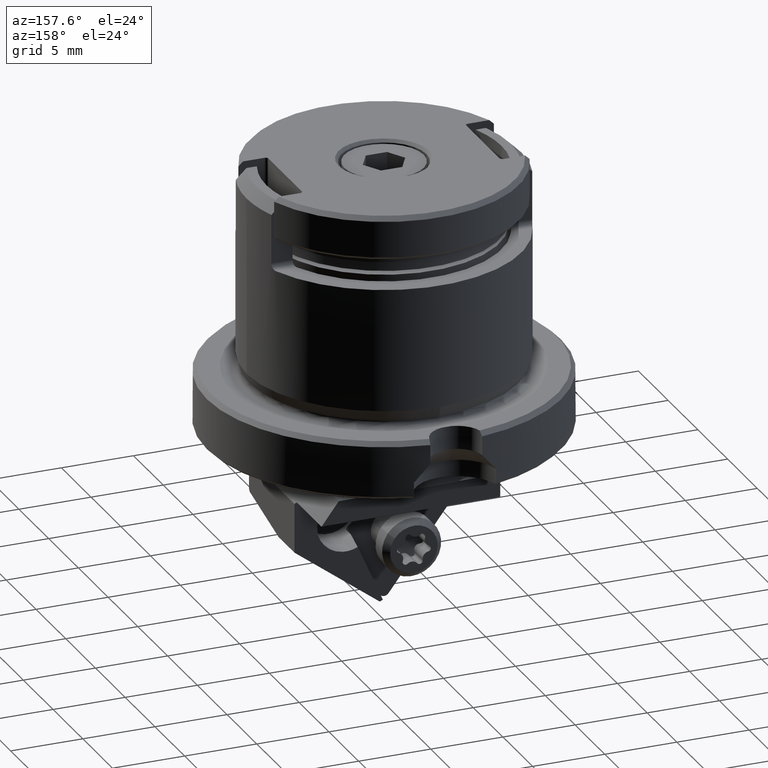
[diagram: clean part render]
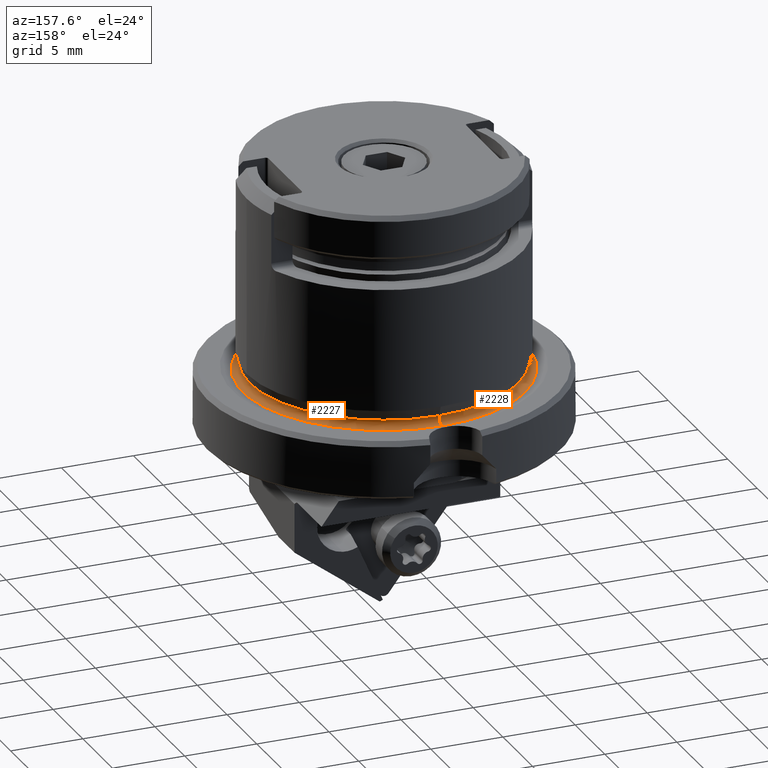
[diagram: same view with one multi-face feature highlighted, each face labeled with its STEP entity id]
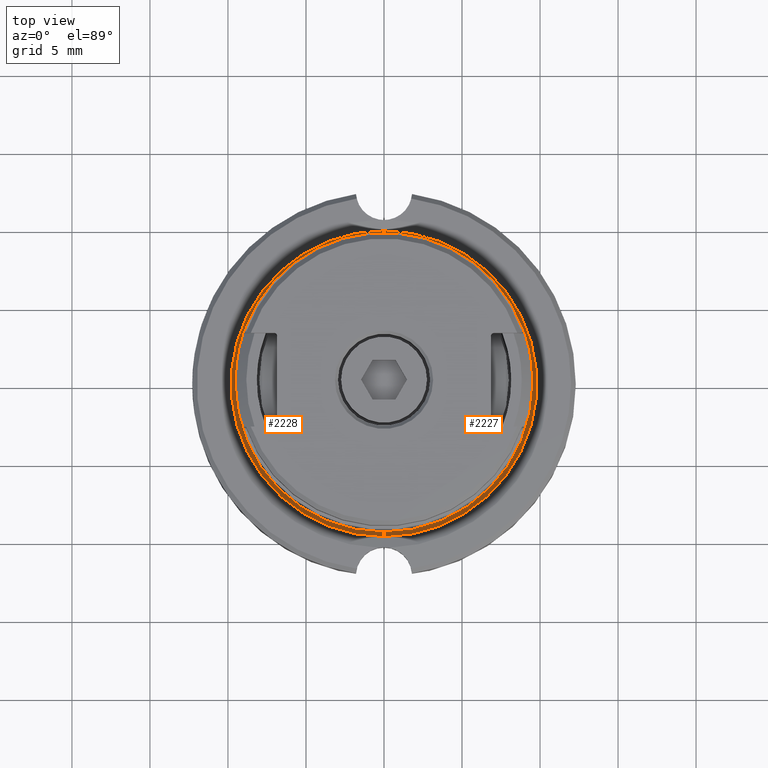
[diagram: same view with one multi-face feature highlighted, each face labeled with its STEP entity id]
A machine part, auxiliary view. The highlighted faces form ONE feature: a constant-radius fillet chain: 2 tangent blend faces with common blend radius 0.4 mm. The faces share edges in the B-rep.
A second angle (top view) of the same feature is appended — it is thin or edge-on in the first view.
Their STEP definitions:
[1] entity #2227 (Torus):
#282=TOROIDAL_SURFACE('',#19058,9.677055903343,0.4);
#1278=FACE_OUTER_BOUND('',#3932,.T.);
#2227=ADVANCED_FACE('',(#1278),#282,.F.);
#3932=EDGE_LOOP('',(#8798,#8799,#8800,#8801));
#4550=CIRCLE('',#19053,9.295569123044);
#4551=CIRCLE('',#19055,9.797338223145);
#4552=CIRCLE('',#19056,0.4);
#4553=CIRCLE('',#19057,0.4);
#8798=ORIENTED_EDGE('',*,*,#13512,.F.);
#8799=ORIENTED_EDGE('',*,*,#13513,.F.);
#8800=ORIENTED_EDGE('',*,*,#13511,.T.);
#8801=ORIENTED_EDGE('',*,*,#13514,.F.);
#11128=VERTEX_POINT('',#29120);
#11129=VERTEX_POINT('',#29122);
#11130=VERTEX_POINT('',#29128);
#11131=VERTEX_POINT('',#29129);
#13511=EDGE_CURVE('',#11128,#11129,#4550,.T.);
#13512=EDGE_CURVE('',#11130,#11131,#4551,.T.);
#13513=EDGE_CURVE('',#11128,#11130,#4552,.T.);
#13514=EDGE_CURVE('',#11131,#11129,#4553,.T.);
#19053=AXIS2_PLACEMENT_3D('',#29125,#23360,#23361);
#19055=AXIS2_PLACEMENT_3D('',#29127,#23364,#23365);
#19056=AXIS2_PLACEMENT_3D('',#29130,#23366,#23367);
#19057=AXIS2_PLACEMENT_3D('',#29131,#23368,#23369);
#19058=AXIS2_PLACEMENT_3D('',#29132,#23370,#23371);
#23360=DIRECTION('',(0.,0.,-1.));
#23361=DIRECTION('',(0.,1.,0.));
#23364=DIRECTION('',(0.,0.,-1.));
#23365=DIRECTION('',(0.,1.,0.));
#23366=DIRECTION('',(1.,0.,0.));
#23367=DIRECTION('',(0.,-0.953716950748158,0.300705799504487));
#23368=DIRECTION('',(1.,0.,0.));
#23369=DIRECTION('',(0.,-0.300705799504307,-0.953716950748217));
#23370=DIRECTION('',(0.,0.,1.));
#23371=DIRECTION('',(0.,1.,0.));
#29120=CARTESIAN_POINT('',(0.,9.295569123044,0.2723382231452));
#29122=CARTESIAN_POINT('',(0.,-9.295569123044,0.2723382231451));
#29125=CARTESIAN_POINT('',(0.,0.,0.2723382231451));
#29127=CARTESIAN_POINT('',(0.,0.,-0.2294308769558));
#29128=CARTESIAN_POINT('',(0.,9.797338223145,-0.2294308769559));
#29129=CARTESIAN_POINT('',(0.,-9.797338223145,-0.2294308769559));
#29130=CARTESIAN_POINT('',(0.,9.677055903343,0.1520559033434));
#29131=CARTESIAN_POINT('',(0.,-9.677055903343,0.1520559033434));
#29132=CARTESIAN_POINT('',(0.,0.,0.1520559033434));
[2] entity #2228 (Torus):
#283=TOROIDAL_SURFACE('',#19060,9.677055903343,0.4);
#1279=FACE_OUTER_BOUND('',#3933,.T.);
#2228=ADVANCED_FACE('',(#1279),#283,.F.);
#3933=EDGE_LOOP('',(#8802,#8803,#8804,#8805));
#4549=CIRCLE('',#19051,9.295569123044);
#4552=CIRCLE('',#19056,0.4);
#4553=CIRCLE('',#19057,0.4);
#4554=CIRCLE('',#19059,9.797338223145);
#8802=ORIENTED_EDGE('',*,*,#13509,.T.);
#8803=ORIENTED_EDGE('',*,*,#13513,.T.);
#8804=ORIENTED_EDGE('',*,*,#13515,.F.);
#8805=ORIENTED_EDGE('',*,*,#13514,.T.);
#11128=VERTEX_POINT('',#29120);
#11129=VERTEX_POINT('',#29122);
#11130=VERTEX_POINT('',#29128);
#11131=VERTEX_POINT('',#29129);
#13509=EDGE_CURVE('',#11129,#11128,#4549,.T.);
#13513=EDGE_CURVE('',#11128,#11130,#4552,.T.);
#13514=EDGE_CURVE('',#11131,#11129,#4553,.T.);
#13515=EDGE_CURVE('',#11131,#11130,#4554,.T.);
#19051=AXIS2_PLACEMENT_3D('',#29121,#23355,#23356);
#19056=AXIS2_PLACEMENT_3D('',#29130,#23366,#23367);
#19057=AXIS2_PLACEMENT_3D('',#29131,#23368,#23369);
#19059=AXIS2_PLACEMENT_3D('',#29133,#23372,#23373);
#19060=AXIS2_PLACEMENT_3D('',#29134,#23374,#23375);
#23355=DIRECTION('',(0.,0.,-1.));
#23356=DIRECTION('',(0.,-1.,0.));
#23366=DIRECTION('',(1.,0.,0.));
#23367=DIRECTION('',(0.,-0.953716950748158,0.300705799504487));
#23368=DIRECTION('',(1.,0.,0.));
#23369=DIRECTION('',(0.,-0.300705799504307,-0.953716950748217));
#23372=DIRECTION('',(0.,0.,-1.));
#23373=DIRECTION('',(0.,-1.,0.));
#23374=DIRECTION('',(0.,0.,1.));
#23375=DIRECTION('',(0.,1.,0.));
#29120=CARTESIAN_POINT('',(0.,9.295569123044,0.2723382231452));
#29121=CARTESIAN_POINT('',(0.,0.,0.2723382231451));
#29122=CARTESIAN_POINT('',(0.,-9.295569123044,0.2723382231451));
#29128=CARTESIAN_POINT('',(0.,9.797338223145,-0.2294308769559));
#29129=CARTESIAN_POINT('',(0.,-9.797338223145,-0.2294308769559));
#29130=CARTESIAN_POINT('',(0.,9.677055903343,0.1520559033434));
#29131=CARTESIAN_POINT('',(0.,-9.677055903343,0.1520559033434));
#29133=CARTESIAN_POINT('',(0.,0.,-0.2294308769558));
#29134=CARTESIAN_POINT('',(0.,0.,0.1520559033434));